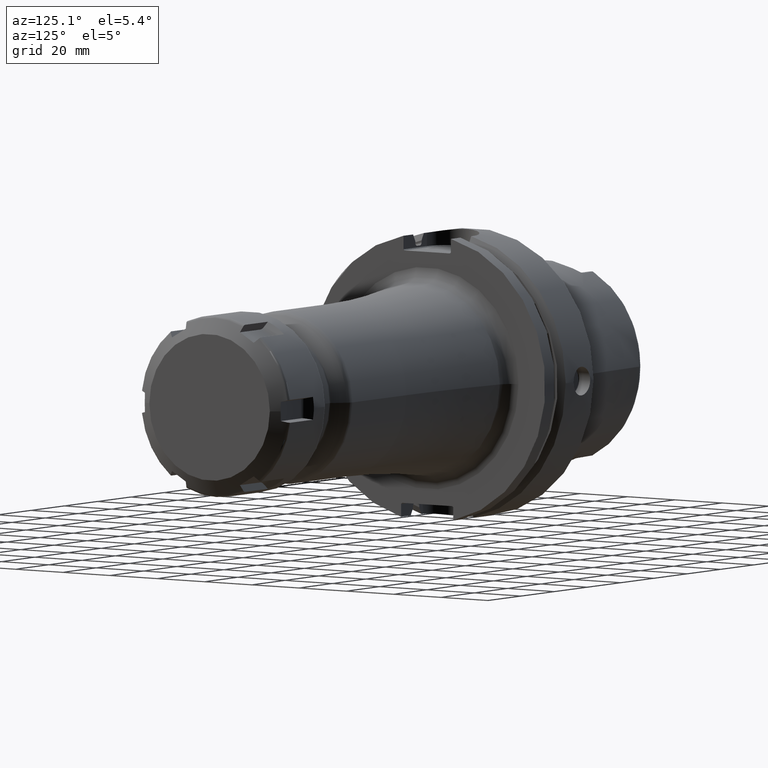
[diagram: clean part render]
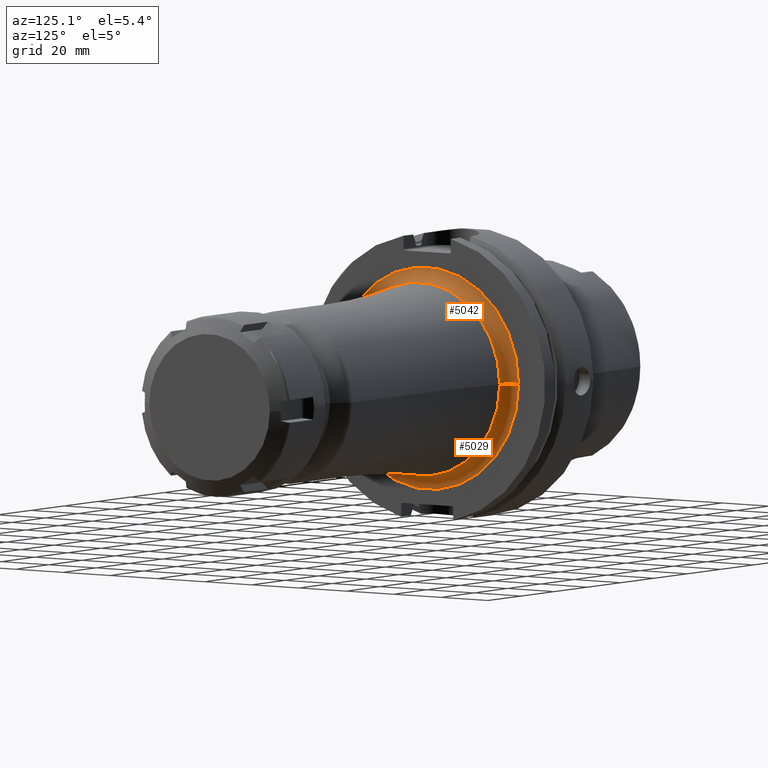
[diagram: same view with one multi-face feature highlighted, each face labeled with its STEP entity id]
A machine part, auxiliary view. The highlighted faces form ONE feature: a constant-radius fillet chain: 2 tangent blend faces with common blend radius 5 mm. The faces share edges in the B-rep.
Their STEP definitions:
[1] entity #5029 (Torus):
#1226=CARTESIAN_POINT('',(2.9E1,0.E0,0.E0));
#1227=DIRECTION('',(1.E0,0.E0,0.E0));
#1228=DIRECTION('',(0.E0,-1.E0,-1.992260273123E-14));
#1229=AXIS2_PLACEMENT_3D('',#1226,#1227,#1228);
#1782=CARTESIAN_POINT('',(3.4E1,-3.864241622603E1,1.779132396962E-14));
#1783=DIRECTION('',(0.E0,0.E0,-1.E0));
#1784=DIRECTION('',(-1.E0,-1.421085471520E-14,0.E0));
#1785=AXIS2_PLACEMENT_3D('',#1782,#1783,#1784);
#1787=CARTESIAN_POINT('',(3.4E1,3.864241622603E1,-2.225997164373E-14));
#1788=DIRECTION('',(0.E0,0.E0,1.E0));
#1789=DIRECTION('',(-1.E0,1.278976924368E-14,0.E0));
#1790=AXIS2_PLACEMENT_3D('',#1787,#1788,#1789);
#1802=CARTESIAN_POINT('',(3.327536231884E1,0.E0,0.E0));
#1803=DIRECTION('',(1.E0,0.E0,0.E0));
#1804=DIRECTION('',(0.E0,-1.E0,0.E0));
#1805=AXIS2_PLACEMENT_3D('',#1802,#1803,#1804);
#3244=CARTESIAN_POINT('',(3.327536231884E1,3.369520486699E1,0.E0));
#3245=VERTEX_POINT('',#3244);
#3246=CARTESIAN_POINT('',(2.9E1,-3.864241622603E1,-7.698575070459E-13));
#3247=CARTESIAN_POINT('',(2.9E1,3.864241622603E1,7.651251759117E-13));
#3248=VERTEX_POINT('',#3246);
#3249=VERTEX_POINT('',#3247);
#3250=CARTESIAN_POINT('',(3.327536231884E1,-3.369520486699E1,0.E0));
#3251=VERTEX_POINT('',#3250);
#5015=CARTESIAN_POINT('',(3.4E1,0.E0,0.E0));
#5016=DIRECTION('',(1.E0,0.E0,0.E0));
#5017=DIRECTION('',(0.E0,-9.999969420267E-1,2.473042124085E-3));
#5018=AXIS2_PLACEMENT_3D('',#5015,#5016,#5017);
#5019=TOROIDAL_SURFACE('',#5018,3.864241622603E1,5.E0);
#5020=ORIENTED_EDGE('',*,*,#4465,.F.);
#5022=ORIENTED_EDGE('',*,*,#5021,.T.);
#5024=ORIENTED_EDGE('',*,*,#5023,.T.);
#5026=ORIENTED_EDGE('',*,*,#5025,.F.);
#5027=EDGE_LOOP('',(#5020,#5022,#5024,#5026));
#5028=FACE_OUTER_BOUND('',#5027,.F.);
#5029=ADVANCED_FACE('',(#5028),#5019,.F.);
#1230=CIRCLE('',#1229,3.864241622603E1);
#1786=CIRCLE('',#1785,5.E0);
#1791=CIRCLE('',#1790,5.E0);
#1806=CIRCLE('',#1805,3.369520486699E1);
#4465=EDGE_CURVE('',#3248,#3249,#1230,.T.);
#5021=EDGE_CURVE('',#3248,#3251,#1786,.T.);
#5023=EDGE_CURVE('',#3251,#3245,#1806,.T.);
#5025=EDGE_CURVE('',#3249,#3245,#1791,.T.);
[2] entity #5042 (Torus):
#1231=CARTESIAN_POINT('',(2.9E1,0.E0,0.E0));
#1232=DIRECTION('',(1.E0,0.E0,0.E0));
#1233=DIRECTION('',(0.E0,1.E0,1.980013805131E-14));
#1234=AXIS2_PLACEMENT_3D('',#1231,#1232,#1233);
#1782=CARTESIAN_POINT('',(3.4E1,-3.864241622603E1,1.779132396962E-14));
#1783=DIRECTION('',(0.E0,0.E0,-1.E0));
#1784=DIRECTION('',(-1.E0,-1.421085471520E-14,0.E0));
#1785=AXIS2_PLACEMENT_3D('',#1782,#1783,#1784);
#1787=CARTESIAN_POINT('',(3.4E1,3.864241622603E1,-2.225997164373E-14));
#1788=DIRECTION('',(0.E0,0.E0,1.E0));
#1789=DIRECTION('',(-1.E0,1.278976924368E-14,0.E0));
#1790=AXIS2_PLACEMENT_3D('',#1787,#1788,#1789);
#1792=CARTESIAN_POINT('',(3.327536231884E1,0.E0,0.E0));
#1793=DIRECTION('',(1.E0,0.E0,0.E0));
#1794=DIRECTION('',(0.E0,1.E0,0.E0));
#1795=AXIS2_PLACEMENT_3D('',#1792,#1793,#1794);
#3244=CARTESIAN_POINT('',(3.327536231884E1,3.369520486699E1,0.E0));
#3245=VERTEX_POINT('',#3244);
#3246=CARTESIAN_POINT('',(2.9E1,-3.864241622603E1,-7.698575070459E-13));
#3247=CARTESIAN_POINT('',(2.9E1,3.864241622603E1,7.651251759117E-13));
#3248=VERTEX_POINT('',#3246);
#3249=VERTEX_POINT('',#3247);
#3250=CARTESIAN_POINT('',(3.327536231884E1,-3.369520486699E1,0.E0));
#3251=VERTEX_POINT('',#3250);
#5030=CARTESIAN_POINT('',(3.4E1,0.E0,0.E0));
#5031=DIRECTION('',(1.E0,0.E0,0.E0));
#5032=DIRECTION('',(0.E0,9.999969420267E-1,-2.473042124085E-3));
#5033=AXIS2_PLACEMENT_3D('',#5030,#5031,#5032);
#5034=TOROIDAL_SURFACE('',#5033,3.864241622603E1,5.E0);
#5035=ORIENTED_EDGE('',*,*,#4467,.F.);
#5036=ORIENTED_EDGE('',*,*,#5025,.T.);
#5038=ORIENTED_EDGE('',*,*,#5037,.T.);
#5039=ORIENTED_EDGE('',*,*,#5021,.F.);
#5040=EDGE_LOOP('',(#5035,#5036,#5038,#5039));
#5041=FACE_OUTER_BOUND('',#5040,.F.);
#5042=ADVANCED_FACE('',(#5041),#5034,.F.);
#1235=CIRCLE('',#1234,3.864241622603E1);
#1786=CIRCLE('',#1785,5.E0);
#1791=CIRCLE('',#1790,5.E0);
#1796=CIRCLE('',#1795,3.369520486699E1);
#4467=EDGE_CURVE('',#3249,#3248,#1235,.T.);
#5021=EDGE_CURVE('',#3248,#3251,#1786,.T.);
#5025=EDGE_CURVE('',#3249,#3245,#1791,.T.);
#5037=EDGE_CURVE('',#3245,#3251,#1796,.T.);